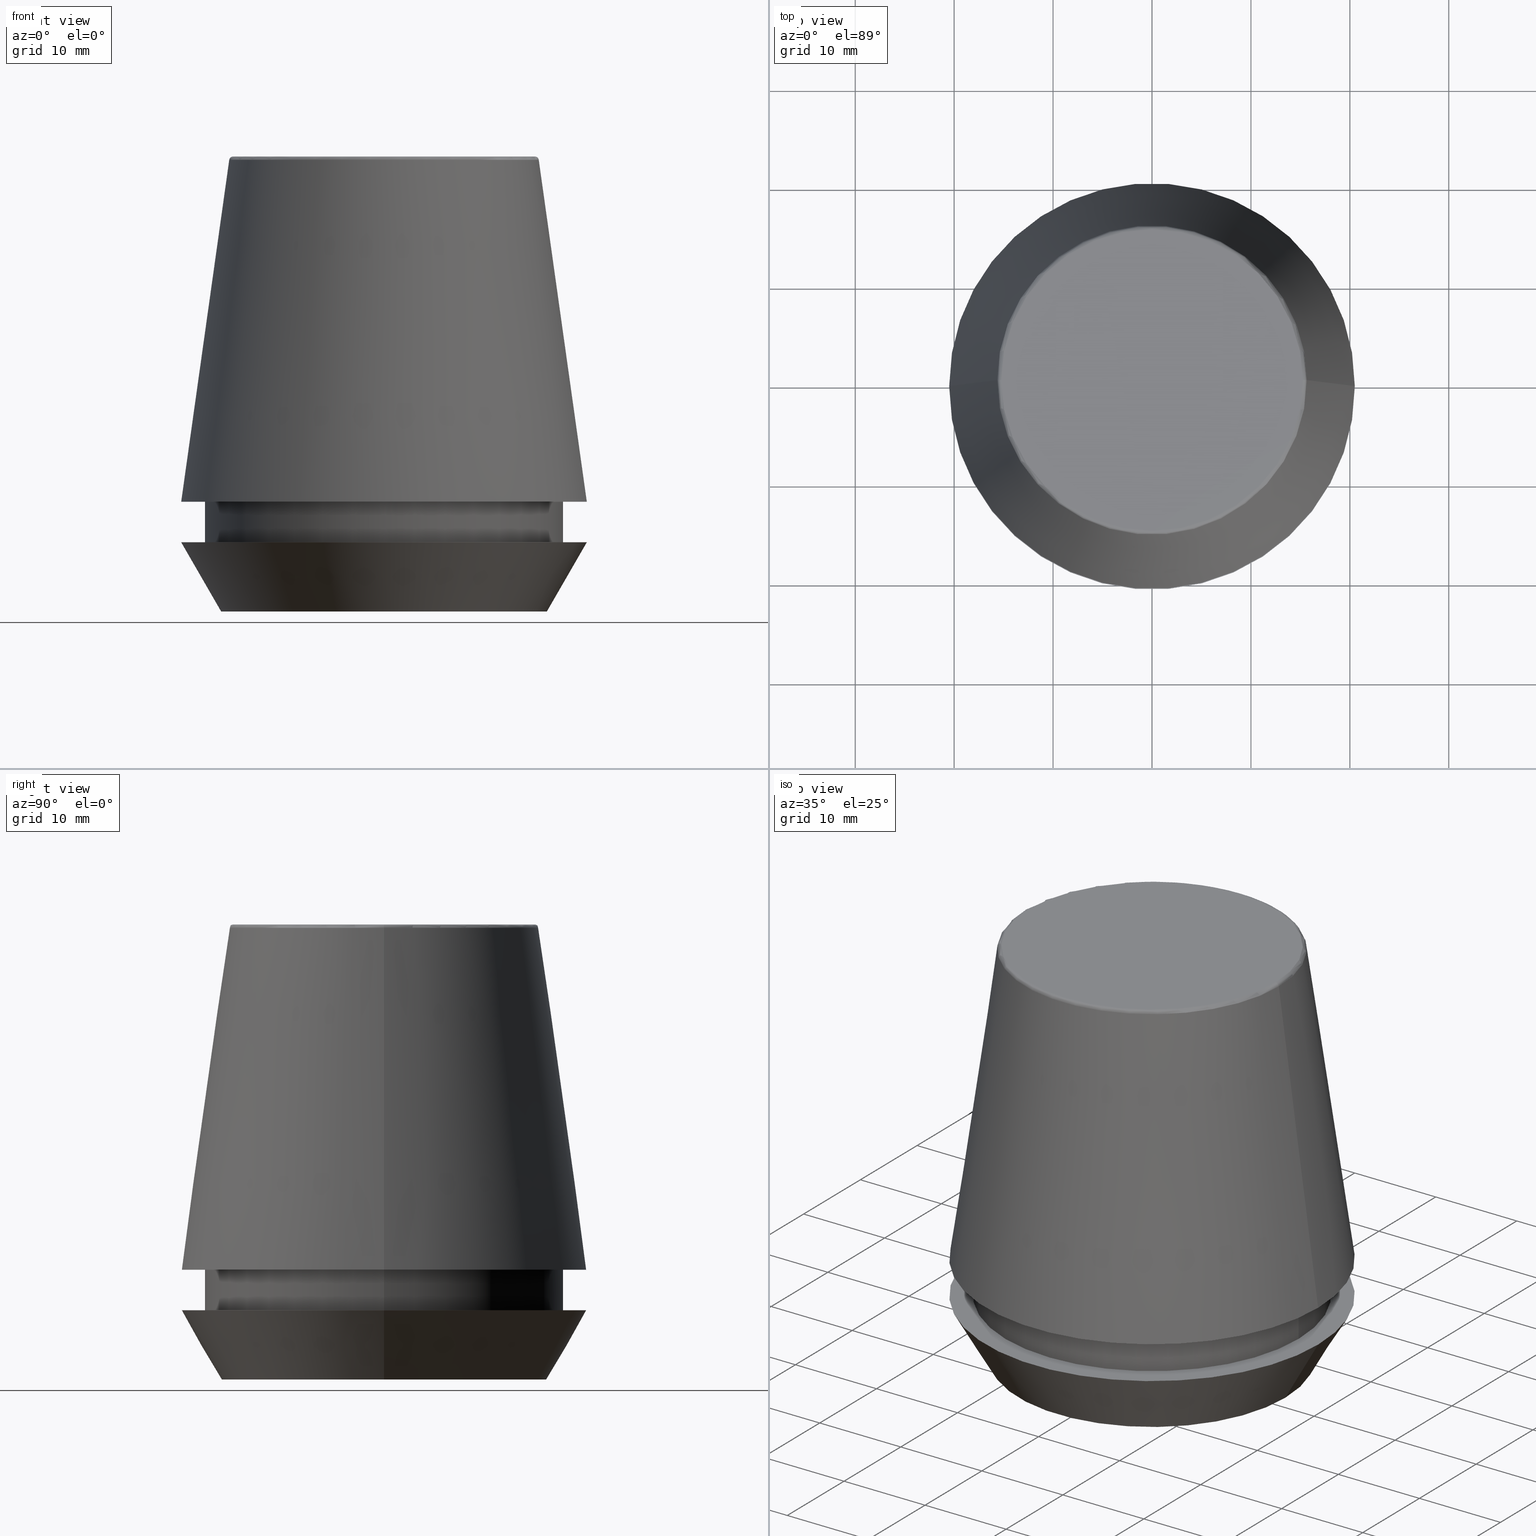
[diagram: canonical four-view strip — front | top / right | iso, engineering-drawing reading convention]
A machine part, canonical four-view strip (front | top / right | iso — engineering-drawing reading convention). The complete STEP part file that produces these views, byte-faithful:
ISO-10303-21;
HEADER;
FILE_DESCRIPTION (( 'STEP AP203' ),
    '1' );
FILE_NAME ('TAP COLLET ER 40G 6.0 X 4.9.STEP',
    '2019-04-10T03:23:41',
    ( '' ),
    ( '' ),
    'SwSTEP 2.0',
    'SolidWorks 2014',
    '' );
FILE_SCHEMA (( 'CONFIG_CONTROL_DESIGN' ));
ENDSEC;

DATA;
#1 = DIRECTION ( 'NONE',  ( -0.0000000000000000000, -0.0000000000000000000, 1.000000000000000000 ) ) ;
#2 = ORIENTED_EDGE ( 'NONE', *, *, #170, .F. ) ;
#3 = VERTEX_POINT ( 'NONE', #18 ) ;
#4 = PERSON_AND_ORGANIZATION_ROLE ( 'creator' ) ;
#5 = CARTESIAN_POINT ( 'NONE',  ( 18.10000000000000500, 0.0000000000000000000, 11.09999999999999800 ) ) ;
#6 = EDGE_CURVE ( 'NONE', #210, #196, #367, .T. ) ;
#7 = APPROVAL_ROLE ( '' ) ;
#8 = APPROVAL ( #111, 'UNSPECIFIED' ) ;
#9 = EDGE_CURVE ( 'NONE', #340, #305, #217, .T. ) ;
#10 = APPROVAL_PERSON_ORGANIZATION ( #343, #91, #303 ) ;
#11 = DESIGN_CONTEXT ( 'detailed design', #139, 'design' ) ;
#12 = CARTESIAN_POINT ( 'NONE',  ( 15.24773554530077600, 0.0000000000000000000, 46.00000000000000000 ) ) ;
#13 = DATE_AND_TIME ( #75, #61 ) ;
#14 = EDGE_CURVE ( 'NONE', #173, #196, #366, .T. ) ;
#15 = CC_DESIGN_PERSON_AND_ORGANIZATION_ASSIGNMENT ( #86, #66, ( #213 ) ) ;
#16 = ORIENTED_EDGE ( 'NONE', *, *, #297, .F. ) ;
#17 = ORIENTED_EDGE ( 'NONE', *, *, #87, .T. ) ;
#18 = CARTESIAN_POINT ( 'NONE',  ( -16.45854811567268100, 2.263058382549599700E-015, 0.0000000000000000000 ) ) ;
#19 = CARTESIAN_POINT ( 'NONE',  ( 0.0000000000000000000, 0.0000000000000000000, 11.09999999999999800 ) ) ;
#20 = AXIS2_PLACEMENT_3D ( 'NONE', #199, #130, #344 ) ;
#21 = DIRECTION ( 'NONE',  ( 1.000000000000000000, 0.0000000000000000000, 0.0000000000000000000 ) ) ;
#22 = ORIENTED_EDGE ( 'NONE', *, *, #144, .F. ) ;
#23 = CARTESIAN_POINT ( 'NONE',  ( -18.10000000000000100, 2.216610706456709600E-015, 6.999999999999999100 ) ) ;
#24 = DIRECTION ( 'NONE',  ( -0.0000000000000000000, -0.0000000000000000000, 1.000000000000000000 ) ) ;
#25 = CARTESIAN_POINT ( 'NONE',  ( 0.0000000000000000000, 0.0000000000000000000, 0.0000000000000000000 ) ) ;
#26 = CARTESIAN_POINT ( 'NONE',  ( 0.0000000000000000000, 0.0000000000000000000, 11.09999999999999800 ) ) ;
#27 = ORIENTED_EDGE ( 'NONE', *, *, #239, .F. ) ;
#28 = CARTESIAN_POINT ( 'NONE',  ( 20.50032537154048700, 2.510565784773633700E-015, 11.09999999999999800 ) ) ;
#29 = DIRECTION ( 'NONE',  ( 1.000000000000000000, 0.0000000000000000000, 0.0000000000000000000 ) ) ;
#30 = VERTEX_POINT ( 'NONE', #319 ) ;
#31 = EDGE_CURVE ( 'NONE', #246, #359, #223, .T. ) ;
#32 =( NAMED_UNIT ( * ) SI_UNIT ( $, .STERADIAN. ) SOLID_ANGLE_UNIT ( ) );
#33 = DATE_TIME_ROLE ( 'creation_date' ) ;
#34 = DIRECTION ( 'NONE',  ( 1.000000000000000000, 0.0000000000000000000, 0.0000000000000000000 ) ) ;
#35 = EDGE_LOOP ( 'NONE', ( #191, #355, #17, #322 ) ) ;
#36 = COORDINATED_UNIVERSAL_TIME_OFFSET ( 5, 30, .AHEAD. ) ;
#37 = EDGE_CURVE ( 'NONE', #340, #246, #212, .T. ) ;
#38 = ORIENTED_EDGE ( 'NONE', *, *, #145, .T. ) ;
#39 = AXIS2_PLACEMENT_3D ( 'NONE', #195, #88, #335 ) ;
#40 = COORDINATED_UNIVERSAL_TIME_OFFSET ( 5, 30, .AHEAD. ) ;
#41 = EDGE_LOOP ( 'NONE', ( #105, #122, #121, #147 ) ) ;
#42 = APPLICATION_PROTOCOL_DEFINITION ( 'international standard', 'config_control_design', 1994, #139 ) ;
#43 = MECHANICAL_CONTEXT ( 'NONE', #163, 'mechanical' ) ;
#44 = EDGE_LOOP ( 'NONE', ( #353, #38 ) ) ;
#45 = ORIENTED_EDGE ( 'NONE', *, *, #14, .F. ) ;
#46 = EDGE_CURVE ( 'NONE', #3, #70, #309, .T. ) ;
#47 = SECURITY_CLASSIFICATION ( '', '', #89 ) ;
#48 = EDGE_LOOP ( 'NONE', ( #125, #50 ) ) ;
#49 = EDGE_CURVE ( 'NONE', #281, #340, #372, .T. ) ;
#50 = ORIENTED_EDGE ( 'NONE', *, *, #142, .F. ) ;
#51 = DIRECTION ( 'NONE',  ( -0.0000000000000000000, -0.0000000000000000000, 1.000000000000000000 ) ) ;
#52 = DATE_AND_TIME ( #214, #207 ) ;
#53 = DIRECTION ( 'NONE',  ( -0.1391731009600587200, 0.0000000000000000000, -0.9902680687415712500 ) ) ;
#54 = CARTESIAN_POINT ( 'NONE',  ( -15.24773554530077600, 1.891563625393435400E-015, 46.00000000000000000 ) ) ;
#55 = EDGE_CURVE ( 'NONE', #370, #210, #361, .T. ) ;
#56 = ORIENTED_EDGE ( 'NONE', *, *, #98, .F. ) ;
#57 = DIRECTION ( 'NONE',  ( 1.000000000000000000, 0.0000000000000000000, 0.0000000000000000000 ) ) ;
#58 = CARTESIAN_POINT ( 'NONE',  ( 0.0000000000000000000, 0.0000000000000000000, 7.000000000000006200 ) ) ;
#59 = CC_DESIGN_PERSON_AND_ORGANIZATION_ASSIGNMENT ( #200, #64, ( #146 ) ) ;
#60 = LOCAL_TIME ( 8, 53, 41.00000000000000000, #36 ) ;
#61 = LOCAL_TIME ( 8, 53, 41.00000000000000000, #274 ) ;
#62 = ADVANCED_FACE ( 'NONE', ( #320 ), #306, .T. ) ;
#63 = PLANE ( 'NONE',  #132 ) ;
#64 = PERSON_AND_ORGANIZATION_ROLE ( 'design_owner' ) ;
#65 = EDGE_CURVE ( 'NONE', #30, #3, #308, .T. ) ;
#66 = PERSON_AND_ORGANIZATION_ROLE ( 'creator' ) ;
#67 = AXIS2_PLACEMENT_3D ( 'NONE', #174, #374, #137 ) ;
#68 = ORIENTED_EDGE ( 'NONE', *, *, #49, .T. ) ;
#69 = ORIENTED_EDGE ( 'NONE', *, *, #123, .F. ) ;
#70 = VERTEX_POINT ( 'NONE', #127 ) ;
#71 = CARTESIAN_POINT ( 'NONE',  ( 0.0000000000000000000, 20.50032537154048700, 11.09999999999999800 ) ) ;
#72 = AXIS2_PLACEMENT_3D ( 'NONE', #156, #126, #325 ) ;
#73 = APPROVAL_PERSON_ORGANIZATION ( #284, #280, #7 ) ;
#74 = CC_DESIGN_APPROVAL ( #91, ( #213 ) ) ;
#75 = CALENDAR_DATE ( 2019, 10, 4 ) ;
#76 = DIRECTION ( 'NONE',  ( 0.0000000000000000000, -1.000000000000000000, 0.0000000000000000000 ) ) ;
#77 = AXIS2_PLACEMENT_3D ( 'NONE', #276, #323, #352 ) ;
#78 = CARTESIAN_POINT ( 'NONE',  ( 0.0000000000000000000, 0.0000000000000000000, 11.09999999999999800 ) ) ;
#79 = DIRECTION ( 'NONE',  ( -0.0000000000000000000, -0.0000000000000000000, 1.000000000000000000 ) ) ;
#80 = CARTESIAN_POINT ( 'NONE',  ( 0.0000000000000000000, 0.0000000000000000000, 0.0000000000000000000 ) ) ;
#81 = DIRECTION ( 'NONE',  ( -1.000000000000000000, 0.0000000000000000000, -0.0000000000000000000 ) ) ;
#82 = DIRECTION ( 'NONE',  ( -0.0000000000000000000, -0.0000000000000000000, 1.000000000000000000 ) ) ;
#83 = DIRECTION ( 'NONE',  ( 1.000000000000000000, 0.0000000000000000000, 0.0000000000000000000 ) ) ;
#84 = VECTOR ( 'NONE', #99, 1000.000000000000000 ) ;
#85 = DIRECTION ( 'NONE',  ( 0.0000000000000000000, 0.0000000000000000000, -1.000000000000000000 ) ) ;
#86 = PERSON_AND_ORGANIZATION ( #338, #204 ) ;
#87 = EDGE_CURVE ( 'NONE', #281, #179, #311, .T. ) ;
#88 = DIRECTION ( 'NONE',  ( 0.0000000000000000000, 0.0000000000000000000, 1.000000000000000000 ) ) ;
#89 = SECURITY_CLASSIFICATION_LEVEL ( 'unclassified' ) ;
#90 = AXIS2_PLACEMENT_3D ( 'NONE', #287, #76, #245 ) ;
#91 = APPROVAL ( #234, 'UNSPECIFIED' ) ;
#92 = EDGE_LOOP ( 'NONE', ( #118, #69 ) ) ;
#93 = CARTESIAN_POINT ( 'NONE',  ( 0.0000000000000000000, 15.24773554530077600, 46.00000000000000000 ) ) ;
#94 = DIRECTION ( 'NONE',  ( -0.4999999999999941700, 6.123233995736694500E-017, 0.8660254037844420400 ) ) ;
#95 = ORIENTED_EDGE ( 'NONE', *, *, #170, .T. ) ;
#96 = AXIS2_PLACEMENT_3D ( 'NONE', #26, #288, #29 ) ;
#97 = ORIENTED_EDGE ( 'NONE', *, *, #37, .T. ) ;
#98 = EDGE_CURVE ( 'NONE', #359, #246, #310, .T. ) ;
#99 = DIRECTION ( 'NONE',  ( -0.0000000000000000000, -0.0000000000000000000, 1.000000000000000000 ) ) ;
#100 = PERSON_AND_ORGANIZATION ( #338, #204 ) ;
#101 = EDGE_LOOP ( 'NONE', ( #294, #337 ) ) ;
#102 = DIRECTION ( 'NONE',  ( 1.000000000000000000, 0.0000000000000000000, 0.0000000000000000000 ) ) ;
#103 = AXIS2_PLACEMENT_3D ( 'NONE', #158, #385, #34 ) ;
#104 = DIRECTION ( 'NONE',  ( -0.0000000000000000000, -0.0000000000000000000, 1.000000000000000000 ) ) ;
#105 = ORIENTED_EDGE ( 'NONE', *, *, #345, .T. ) ;
#106 = DIRECTION ( 'NONE',  ( 0.4999999999999941700, 0.0000000000000000000, 0.8660254037844420400 ) ) ;
#107 = CC_DESIGN_APPROVAL ( #8, ( #307 ) ) ;
#108 = ADVANCED_FACE ( 'NONE', ( #302 ), #315, .T. ) ;
#109 = DIRECTION ( 'NONE',  ( 1.000000000000000000, 0.0000000000000000000, 0.0000000000000000000 ) ) ;
#110 = CALENDAR_DATE ( 2019, 10, 4 ) ;
#111 = APPROVAL_STATUS ( 'not_yet_approved' ) ;
#112 = ORIENTED_EDGE ( 'NONE', *, *, #87, .F. ) ;
#113 = PERSON_AND_ORGANIZATION ( #338, #204 ) ;
#114 = CC_DESIGN_PERSON_AND_ORGANIZATION_ASSIGNMENT ( #176, #269, ( #213 ) ) ;
#115 = EDGE_LOOP ( 'NONE', ( #45, #153, #143, #131 ) ) ;
#116 = ORIENTED_EDGE ( 'NONE', *, *, #37, .F. ) ;
#117 = CLOSED_SHELL ( 'NONE', ( #108, #62, #166, #227, #257, #365, #334, #264, #362, #136, #331, #232 ) ) ;
#118 = ORIENTED_EDGE ( 'NONE', *, *, #345, .F. ) ;
#119 = AXIS2_PLACEMENT_3D ( 'NONE', #157, #381, #189 ) ;
#120 = EDGE_LOOP ( 'NONE', ( #271, #321, #16, #27 ) ) ;
#121 = ORIENTED_EDGE ( 'NONE', *, *, #6, .F. ) ;
#122 = ORIENTED_EDGE ( 'NONE', *, *, #14, .T. ) ;
#123 = EDGE_CURVE ( 'NONE', #173, #370, #312, .T. ) ;
#124 = DIRECTION ( 'NONE',  ( 1.000000000000000000, 0.0000000000000000000, 0.0000000000000000000 ) ) ;
#125 = ORIENTED_EDGE ( 'NONE', *, *, #65, .F. ) ;
#126 = DIRECTION ( 'NONE',  ( -0.0000000000000000000, -0.0000000000000000000, 1.000000000000000000 ) ) ;
#127 = CARTESIAN_POINT ( 'NONE',  ( -20.50000000000000000, 2.510525938252074100E-015, 7.000000000000006200 ) ) ;
#128 = AXIS2_PLACEMENT_3D ( 'NONE', #93, #253, #81 ) ;
#129 = DIRECTION ( 'NONE',  ( 0.0000000000000000000, 0.0000000000000000000, -1.000000000000000000 ) ) ;
#130 = DIRECTION ( 'NONE',  ( -0.0000000000000000000, -0.0000000000000000000, 1.000000000000000000 ) ) ;
#131 = ORIENTED_EDGE ( 'NONE', *, *, #145, .F. ) ;
#132 = AXIS2_PLACEMENT_3D ( 'NONE', #71, #230, #167 ) ;
#133 = VECTOR ( 'NONE', #350, 1000.000000000000000 ) ;
#134 = CARTESIAN_POINT ( 'NONE',  ( -20.50032537154048700, 0.0000000000000000000, 11.09999999999999800 ) ) ;
#135 = PLANE ( 'NONE',  #304 ) ;
#136 = ADVANCED_FACE ( 'NONE', ( #301 ), #290, .T. ) ;
#137 = DIRECTION ( 'NONE',  ( -1.000000000000000000, 0.0000000000000000000, -0.0000000000000000000 ) ) ;
#138 =( LENGTH_UNIT ( ) NAMED_UNIT ( * ) SI_UNIT ( .MILLI., .METRE. ) );
#139 = APPLICATION_CONTEXT ( 'configuration controlled 3d designs of mechanical parts and assemblies' ) ;
#140 = LOCAL_TIME ( 8, 53, 41.00000000000000000, #40 ) ;
#141 = CARTESIAN_POINT ( 'NONE',  ( -18.10000000000000500, 2.216610706456710000E-015, 11.09999999999999800 ) ) ;
#142 = EDGE_CURVE ( 'NONE', #3, #30, #289, .T. ) ;
#143 = ORIENTED_EDGE ( 'NONE', *, *, #55, .T. ) ;
#144 = EDGE_CURVE ( 'NONE', #340, #281, #283, .T. ) ;
#145 = EDGE_CURVE ( 'NONE', #196, #210, #286, .T. ) ;
#146 = PRODUCT ( 'TAP COLLET ER 40G 6.0 X 4.9', 'TAP COLLET ER 40G 6.0 X 4.9', '', ( #43 ) ) ;
#147 = ORIENTED_EDGE ( 'NONE', *, *, #55, .F. ) ;
#148 = DATE_AND_TIME ( #110, #386 ) ;
#149 = DIRECTION ( 'NONE',  ( -1.000000000000000000, 0.0000000000000000000, 0.0000000000000000000 ) ) ;
#150 = EDGE_CURVE ( 'NONE', #305, #179, #277, .T. ) ;
#151 = CARTESIAN_POINT ( 'NONE',  ( 0.0000000000000000000, 0.0000000000000000000, 45.65566924038402900 ) ) ;
#152 = CC_DESIGN_PERSON_AND_ORGANIZATION_ASSIGNMENT ( #113, #368, ( #47 ) ) ;
#153 = ORIENTED_EDGE ( 'NONE', *, *, #123, .T. ) ;
#154 = DIRECTION ( 'NONE',  ( -0.0000000000000000000, -0.0000000000000000000, 1.000000000000000000 ) ) ;
#155 = AXIS2_PLACEMENT_3D ( 'NONE', #160, #387, #192 ) ;
#156 = CARTESIAN_POINT ( 'NONE',  ( 0.0000000000000000000, 0.0000000000000000000, 45.65566924038402900 ) ) ;
#157 = CARTESIAN_POINT ( 'NONE',  ( 0.0000000000000000000, 0.0000000000000000000, 6.999999999999999100 ) ) ;
#158 = CARTESIAN_POINT ( 'NONE',  ( 0.0000000000000000000, 0.0000000000000000000, 11.09999999999999800 ) ) ;
#159 = AXIS2_PLACEMENT_3D ( 'NONE', #19, #154, #124 ) ;
#160 = CARTESIAN_POINT ( 'NONE',  ( -15.24773554530077600, 1.867309052979791600E-015, 45.60000000000000100 ) ) ;
#161 = DIRECTION ( 'NONE',  ( 1.000000000000000000, 0.0000000000000000000, 0.0000000000000000000 ) ) ;
#162 = CC_DESIGN_PERSON_AND_ORGANIZATION_ASSIGNMENT ( #100, #4, ( #307 ) ) ;
#163 = APPLICATION_CONTEXT ( 'configuration controlled 3d designs of mechanical parts and assemblies' ) ;
#164 = MANIFOLD_SOLID_BREP ( 'Revolve1', #117 ) ;
#165 = AXIS2_PLACEMENT_3D ( 'NONE', #220, #85, #183 ) ;
#166 = ADVANCED_FACE ( 'NONE', ( #296 ), #270, .T. ) ;
#167 = DIRECTION ( 'NONE',  ( 1.000000000000000000, 0.0000000000000000000, 0.0000000000000000000 ) ) ;
#168 = APPROVAL_ROLE ( '' ) ;
#169 = ORIENTED_EDGE ( 'NONE', *, *, #239, .T. ) ;
#170 = EDGE_CURVE ( 'NONE', #70, #175, #268, .T. ) ;
#171 = APPROVAL_STATUS ( 'not_yet_approved' ) ;
#172 = AXIS2_PLACEMENT_3D ( 'NONE', #263, #299, #211 ) ;
#173 = VERTEX_POINT ( 'NONE', #23 ) ;
#174 = CARTESIAN_POINT ( 'NONE',  ( 0.0000000000000000000, 20.50000000000000000, 7.000000000000002700 ) ) ;
#175 = VERTEX_POINT ( 'NONE', #252 ) ;
#176 = PERSON_AND_ORGANIZATION ( #338, #204 ) ;
#177 = CARTESIAN_POINT ( 'NONE',  ( 0.0000000000000000000, 0.0000000000000000000, 46.00000000000000000 ) ) ;
#178 = CARTESIAN_POINT ( 'NONE',  ( 0.0000000000000000000, 0.0000000000000000000, 46.00000000000000000 ) ) ;
#179 = VERTEX_POINT ( 'NONE', #134 ) ;
#180 = CARTESIAN_POINT ( 'NONE',  ( -18.10000000000000500, 2.216610706456710000E-015, 46.00000000000000000 ) ) ;
#181 = CC_DESIGN_DATE_AND_TIME_ASSIGNMENT ( #371, #33, ( #307 ) ) ;
#182 = EDGE_CURVE ( 'NONE', #281, #359, #272, .T. ) ;
#183 = DIRECTION ( 'NONE',  ( -1.000000000000000000, 0.0000000000000000000, 0.0000000000000000000 ) ) ;
#184 = ORIENTED_EDGE ( 'NONE', *, *, #31, .T. ) ;
#185 = CONICAL_SURFACE ( 'NONE', #375, 16.45854811567268100, 0.5235987755982921500 ) ;
#186 = CONICAL_SURFACE ( 'NONE', #209, 16.45854811567268100, 0.5235987755982921500 ) ;
#187 = DIRECTION ( 'NONE',  ( -0.0000000000000000000, -0.0000000000000000000, 1.000000000000000000 ) ) ;
#188 = CC_DESIGN_SECURITY_CLASSIFICATION ( #47, ( #213 ) ) ;
#189 = DIRECTION ( 'NONE',  ( 1.000000000000000000, 0.0000000000000000000, 0.0000000000000000000 ) ) ;
#190 = CARTESIAN_POINT ( 'NONE',  ( 0.0000000000000000000, 0.0000000000000000000, 11.09999999999999800 ) ) ;
#191 = ORIENTED_EDGE ( 'NONE', *, *, #9, .F. ) ;
#192 = DIRECTION ( 'NONE',  ( -1.000000000000000000, 1.224646799147353900E-016, 0.0000000000000000000 ) ) ;
#193 = APPROVAL_PERSON_ORGANIZATION ( #197, #8, #168 ) ;
#194 = CARTESIAN_POINT ( 'NONE',  ( 15.64384277279740400, 2.213191991290356800E-015, 45.65566924038402900 ) ) ;
#195 = CARTESIAN_POINT ( 'NONE',  ( 0.0000000000000000000, 0.0000000000000000000, 0.0000000000000000000 ) ) ;
#196 = VERTEX_POINT ( 'NONE', #141 ) ;
#197 = PERSON_AND_ORGANIZATION ( #338, #204 ) ;
#198 = AXIS2_PLACEMENT_3D ( 'NONE', #295, #104, #330 ) ;
#199 = CARTESIAN_POINT ( 'NONE',  ( 0.0000000000000000000, 0.0000000000000000000, 46.00000000000000000 ) ) ;
#200 = PERSON_AND_ORGANIZATION ( #338, #204 ) ;
#201 = DATE_TIME_ROLE ( 'classification_date' ) ;
#202 = ORIENTED_EDGE ( 'NONE', *, *, #31, .F. ) ;
#203 = AXIS2_PLACEMENT_3D ( 'NONE', #151, #82, #329 ) ;
#204 = ORGANIZATION ( 'UNSPECIFIED', 'UNSPECIFIED', '' ) ;
#205 = AXIS2_PLACEMENT_3D ( 'NONE', #178, #291, #102 ) ;
#206 = ORIENTED_EDGE ( 'NONE', *, *, #9, .T. ) ;
#207 = LOCAL_TIME ( 8, 53, 41.00000000000000000, #215 ) ;
#208 = CARTESIAN_POINT ( 'NONE',  ( 0.0000000000000000000, 0.0000000000000000000, 45.60000000000000100 ) ) ;
#209 = AXIS2_PLACEMENT_3D ( 'NONE', #25, #358, #313 ) ;
#210 = VERTEX_POINT ( 'NONE', #5 ) ;
#211 = DIRECTION ( 'NONE',  ( 1.000000000000000000, 0.0000000000000000000, 0.0000000000000000000 ) ) ;
#212 = CIRCLE ( 'NONE', #90, 0.3999999999999975800 ) ;
#213 = PRODUCT_DEFINITION_FORMATION_WITH_SPECIFIED_SOURCE ( 'ANY', '', #146, .NOT_KNOWN. ) ;
#214 = CALENDAR_DATE ( 2019, 10, 4 ) ;
#215 = COORDINATED_UNIVERSAL_TIME_OFFSET ( 5, 30, .AHEAD. ) ;
#216 = CARTESIAN_POINT ( 'NONE',  ( -16.45854811567268100, 2.015590826847124800E-015, 0.0000000000000000000 ) ) ;
#217 = LINE ( 'NONE', #351, #133 ) ;
#218 = APPROVAL_DATE_TIME ( #52, #8 ) ;
#219 = AXIS2_PLACEMENT_3D ( 'NONE', #58, #259, #83 ) ;
#220 = CARTESIAN_POINT ( 'NONE',  ( 0.0000000000000000000, 0.0000000000000000000, 11.09999999999999800 ) ) ;
#221 = CARTESIAN_POINT ( 'NONE',  ( 0.0000000000000000000, 0.0000000000000000000, 45.60000000000000100 ) ) ;
#222 = DIRECTION ( 'NONE',  ( 1.000000000000000000, 0.0000000000000000000, 0.0000000000000000000 ) ) ;
#223 = CIRCLE ( 'NONE', #77, 15.24773554530077600 ) ;
#224 = AXIS2_PLACEMENT_3D ( 'NONE', #251, #79, #292 ) ;
#225 = PLANE ( 'NONE',  #128 ) ;
#226 = CARTESIAN_POINT ( 'NONE',  ( -15.64384277279740400, 0.0000000000000000000, 45.65566924038402900 ) ) ;
#227 = ADVANCED_FACE ( 'NONE', ( #285 ), #186, .T. ) ;
#228 = ORIENTED_EDGE ( 'NONE', *, *, #150, .T. ) ;
#229 = AXIS2_PLACEMENT_3D ( 'NONE', #221, #187, #327 ) ;
#230 = DIRECTION ( 'NONE',  ( 0.0000000000000000000, -0.0000000000000000000, 1.000000000000000000 ) ) ;
#231 = FACE_OUTER_BOUND ( 'NONE', #101, .T. ) ;
#232 = ADVANCED_FACE ( 'NONE', ( #266 ), #225, .F. ) ;
#233 = COORDINATED_UNIVERSAL_TIME_OFFSET ( 5, 30, .AHEAD. ) ;
#234 = APPROVAL_STATUS ( 'not_yet_approved' ) ;
#235 = FACE_OUTER_BOUND ( 'NONE', #255, .T. ) ;
#236 = SHAPE_DEFINITION_REPRESENTATION ( #346, #354 ) ;
#237 = CIRCLE ( 'NONE', #219, 20.50000000000000000 ) ;
#238 = APPLICATION_PROTOCOL_DEFINITION ( 'international standard', 'config_control_design', 1994, #163 ) ;
#239 = EDGE_CURVE ( 'NONE', #30, #175, #250, .T. ) ;
#240 = ORIENTED_EDGE ( 'NONE', *, *, #182, .T. ) ;
#241 = CYLINDRICAL_SURFACE ( 'NONE', #318, 18.10000000000000500 ) ;
#242 = AXIS2_PLACEMENT_3D ( 'NONE', #190, #24, #222 ) ;
#243 = FACE_BOUND ( 'NONE', #44, .T. ) ;
#244 = CIRCLE ( 'NONE', #172, 18.10000000000000100 ) ;
#245 = DIRECTION ( 'NONE',  ( 0.0000000000000000000, 0.0000000000000000000, -1.000000000000000000 ) ) ;
#246 = VERTEX_POINT ( 'NONE', #12 ) ;
#247 = FACE_BOUND ( 'NONE', #92, .T. ) ;
#248 = PRODUCT_RELATED_PRODUCT_CATEGORY ( 'detail', '', ( #146 ) ) ;
#249 = CIRCLE ( 'NONE', #96, 20.50032537154048700 ) ;
#250 = LINE ( 'NONE', #279, #262 ) ;
#251 = CARTESIAN_POINT ( 'NONE',  ( 0.0000000000000000000, 0.0000000000000000000, 0.0000000000000000000 ) ) ;
#252 = CARTESIAN_POINT ( 'NONE',  ( 20.50000000000000000, 0.0000000000000000000, 7.000000000000006200 ) ) ;
#253 = DIRECTION ( 'NONE',  ( 0.0000000000000000000, 0.0000000000000000000, -1.000000000000000000 ) ) ;
#254 = DIRECTION ( 'NONE',  ( -0.0000000000000000000, -0.0000000000000000000, 1.000000000000000000 ) ) ;
#255 = EDGE_LOOP ( 'NONE', ( #300, #256, #169, #2 ) ) ;
#256 = ORIENTED_EDGE ( 'NONE', *, *, #142, .T. ) ;
#257 = ADVANCED_FACE ( 'NONE', ( #273 ), #135, .F. ) ;
#258 = APPROVAL_DATE_TIME ( #261, #280 ) ;
#259 = DIRECTION ( 'NONE',  ( -0.0000000000000000000, -0.0000000000000000000, 1.000000000000000000 ) ) ;
#260 = FACE_OUTER_BOUND ( 'NONE', #115, .T. ) ;
#261 = DATE_AND_TIME ( #332, #140 ) ;
#262 = VECTOR ( 'NONE', #106, 1000.000000000000000 ) ;
#263 = CARTESIAN_POINT ( 'NONE',  ( 0.0000000000000000000, 0.0000000000000000000, 6.999999999999999100 ) ) ;
#264 = ADVANCED_FACE ( 'NONE', ( #260 ), #241, .T. ) ;
#265 = ORIENTED_EDGE ( 'NONE', *, *, #98, .T. ) ;
#266 = FACE_OUTER_BOUND ( 'NONE', #378, .T. ) ;
#267 = FACE_OUTER_BOUND ( 'NONE', #328, .T. ) ;
#268 = CIRCLE ( 'NONE', #198, 20.50000000000000000 ) ;
#269 = PERSON_AND_ORGANIZATION_ROLE ( 'design_supplier' ) ;
#270 = CYLINDRICAL_SURFACE ( 'NONE', #20, 18.10000000000000500 ) ;
#271 = ORIENTED_EDGE ( 'NONE', *, *, #65, .T. ) ;
#272 = CIRCLE ( 'NONE', #155, 0.3999999999999975800 ) ;
#273 = FACE_OUTER_BOUND ( 'NONE', #48, .T. ) ;
#274 = COORDINATED_UNIVERSAL_TIME_OFFSET ( 5, 30, .AHEAD. ) ;
#275 = AXIS2_PLACEMENT_3D ( 'NONE', #78, #129, #149 ) ;
#276 = CARTESIAN_POINT ( 'NONE',  ( 0.0000000000000000000, 0.0000000000000000000, 46.00000000000000000 ) ) ;
#277 = CIRCLE ( 'NONE', #242, 20.50032537154048700 ) ;
#278 = FACE_OUTER_BOUND ( 'NONE', #342, .T. ) ;
#279 = CARTESIAN_POINT ( 'NONE',  ( 16.45854811567268100, 0.0000000000000000000, 0.0000000000000000000 ) ) ;
#280 = APPROVAL ( #171, 'UNSPECIFIED' ) ;
#281 = VERTEX_POINT ( 'NONE', #226 ) ;
#282 = APPROVAL_DATE_TIME ( #13, #91 ) ;
#283 = CIRCLE ( 'NONE', #203, 15.64384277279740400 ) ;
#284 = PERSON_AND_ORGANIZATION ( #338, #204 ) ;
#285 = FACE_OUTER_BOUND ( 'NONE', #120, .T. ) ;
#286 = CIRCLE ( 'NONE', #103, 18.10000000000000500 ) ;
#287 = CARTESIAN_POINT ( 'NONE',  ( 15.24773554530077600, 0.0000000000000000000, 45.60000000000000100 ) ) ;
#288 = DIRECTION ( 'NONE',  ( -0.0000000000000000000, -0.0000000000000000000, 1.000000000000000000 ) ) ;
#289 = CIRCLE ( 'NONE', #224, 16.45854811567268100 ) ;
#290 = CONICAL_SURFACE ( 'NONE', #275, 20.50032537154048700, 0.1396263401595396200 ) ;
#291 = DIRECTION ( 'NONE',  ( -0.0000000000000000000, -0.0000000000000000000, 1.000000000000000000 ) ) ;
#292 = DIRECTION ( 'NONE',  ( 1.000000000000000000, 0.0000000000000000000, 0.0000000000000000000 ) ) ;
#293 = DIRECTION ( 'NONE',  ( -0.0000000000000000000, -0.0000000000000000000, 1.000000000000000000 ) ) ;
#294 = ORIENTED_EDGE ( 'NONE', *, *, #336, .F. ) ;
#295 = CARTESIAN_POINT ( 'NONE',  ( 0.0000000000000000000, 0.0000000000000000000, 7.000000000000006200 ) ) ;
#296 = FACE_OUTER_BOUND ( 'NONE', #41, .T. ) ;
#297 = EDGE_CURVE ( 'NONE', #175, #70, #237, .T. ) ;
#298 = CARTESIAN_POINT ( 'NONE',  ( 0.0000000000000000000, 0.0000000000000000000, 0.0000000000000000000 ) ) ;
#299 = DIRECTION ( 'NONE',  ( -0.0000000000000000000, -0.0000000000000000000, 1.000000000000000000 ) ) ;
#300 = ORIENTED_EDGE ( 'NONE', *, *, #46, .F. ) ;
#301 = FACE_OUTER_BOUND ( 'NONE', #35, .T. ) ;
#302 = FACE_OUTER_BOUND ( 'NONE', #314, .T. ) ;
#303 = APPROVAL_ROLE ( '' ) ;
#304 = AXIS2_PLACEMENT_3D ( 'NONE', #298, #360, #161 ) ;
#305 = VERTEX_POINT ( 'NONE', #28 ) ;
#306 = CONICAL_SURFACE ( 'NONE', #165, 20.50032537154048700, 0.1396263401595396200 ) ;
#307 = PRODUCT_DEFINITION ( 'UNKNOWN', '', #213, #11 ) ;
#308 = CIRCLE ( 'NONE', #356, 16.45854811567268100 ) ;
#309 = LINE ( 'NONE', #216, #341 ) ;
#310 = CIRCLE ( 'NONE', #205, 15.24773554530077600 ) ;
#311 = LINE ( 'NONE', #380, #324 ) ;
#312 = CIRCLE ( 'NONE', #119, 18.10000000000000100 ) ;
#313 = DIRECTION ( 'NONE',  ( 1.000000000000000000, 0.0000000000000000000, 0.0000000000000000000 ) ) ;
#314 = EDGE_LOOP ( 'NONE', ( #377, #240, #202, #116 ) ) ;
#315 = TOROIDAL_SURFACE ( 'NONE', #229, 15.24773554530077600, 0.3999999999999991900 ) ;
#316 = VECTOR ( 'NONE', #51, 1000.000000000000000 ) ;
#317 = CARTESIAN_POINT ( 'NONE',  ( 0.0000000000000000000, 0.0000000000000000000, 0.0000000000000000000 ) ) ;
#318 = AXIS2_PLACEMENT_3D ( 'NONE', #177, #254, #57 ) ;
#319 = CARTESIAN_POINT ( 'NONE',  ( 16.45854811567268100, 0.0000000000000000000, 0.0000000000000000000 ) ) ;
#320 = FACE_OUTER_BOUND ( 'NONE', #383, .T. ) ;
#321 = ORIENTED_EDGE ( 'NONE', *, *, #46, .T. ) ;
#322 = ORIENTED_EDGE ( 'NONE', *, *, #336, .T. ) ;
#323 = DIRECTION ( 'NONE',  ( -0.0000000000000000000, -0.0000000000000000000, 1.000000000000000000 ) ) ;
#324 = VECTOR ( 'NONE', #53, 1000.000000000000000 ) ;
#325 = DIRECTION ( 'NONE',  ( 1.000000000000000000, 0.0000000000000000000, 0.0000000000000000000 ) ) ;
#326 = PLANE ( 'NONE',  #67 ) ;
#327 = DIRECTION ( 'NONE',  ( 1.000000000000000000, 0.0000000000000000000, 0.0000000000000000000 ) ) ;
#328 = EDGE_LOOP ( 'NONE', ( #348, #95 ) ) ;
#329 = DIRECTION ( 'NONE',  ( 1.000000000000000000, 0.0000000000000000000, 0.0000000000000000000 ) ) ;
#330 = DIRECTION ( 'NONE',  ( 1.000000000000000000, 0.0000000000000000000, 0.0000000000000000000 ) ) ;
#331 = ADVANCED_FACE ( 'NONE', ( #278 ), #349, .T. ) ;
#332 = CALENDAR_DATE ( 2019, 10, 4 ) ;
#333 =( NAMED_UNIT ( * ) PLANE_ANGLE_UNIT ( ) SI_UNIT ( $, .RADIAN. ) );
#334 = ADVANCED_FACE ( 'NONE', ( #247, #267 ), #326, .F. ) ;
#335 = DIRECTION ( 'NONE',  ( 1.000000000000000000, 0.0000000000000000000, 0.0000000000000000000 ) ) ;
#336 = EDGE_CURVE ( 'NONE', #179, #305, #249, .T. ) ;
#337 = ORIENTED_EDGE ( 'NONE', *, *, #150, .F. ) ;
#338 = PERSON ( 'UNSPECIFIED', 'UNSPECIFIED', 'UNSPECIFIED', ('UNSPECIFIED'), ('UNSPECIFIED'), ('UNSPECIFIED') ) ;
#339 = DIRECTION ( 'NONE',  ( -0.0000000000000000000, -0.0000000000000000000, 1.000000000000000000 ) ) ;
#340 = VERTEX_POINT ( 'NONE', #194 ) ;
#341 = VECTOR ( 'NONE', #94, 1000.000000000000000 ) ;
#342 = EDGE_LOOP ( 'NONE', ( #376, #68, #97, #56 ) ) ;
#343 = PERSON_AND_ORGANIZATION ( #338, #204 ) ;
#344 = DIRECTION ( 'NONE',  ( 1.000000000000000000, 0.0000000000000000000, 0.0000000000000000000 ) ) ;
#345 = EDGE_CURVE ( 'NONE', #370, #173, #244, .T. ) ;
#346 = PRODUCT_DEFINITION_SHAPE ( 'NONE', 'NONE',  #307 ) ;
#347 = UNCERTAINTY_MEASURE_WITH_UNIT (LENGTH_MEASURE( 1.000000000000000100E-005 ), #138, 'distance_accuracy_value', 'NONE');
#348 = ORIENTED_EDGE ( 'NONE', *, *, #297, .T. ) ;
#349 = TOROIDAL_SURFACE ( 'NONE', #384, 15.24773554530077600, 0.3999999999999991900 ) ;
#350 = DIRECTION ( 'NONE',  ( 0.1391731009600587200, 1.704378926181473400E-017, -0.9902680687415712500 ) ) ;
#351 = CARTESIAN_POINT ( 'NONE',  ( 20.50032537154048700, 2.510565784773633700E-015, 11.09999999999999800 ) ) ;
#352 = DIRECTION ( 'NONE',  ( 1.000000000000000000, 0.0000000000000000000, 0.0000000000000000000 ) ) ;
#353 = ORIENTED_EDGE ( 'NONE', *, *, #6, .T. ) ;
#354 = ADVANCED_BREP_SHAPE_REPRESENTATION ( 'TAP COLLET ER 40G 6.0 X 4.9', ( #164, #39 ), #357 ) ;
#355 = ORIENTED_EDGE ( 'NONE', *, *, #49, .F. ) ;
#356 = AXIS2_PLACEMENT_3D ( 'NONE', #317, #339, #21 ) ;
#357 =( GEOMETRIC_REPRESENTATION_CONTEXT ( 3 ) GLOBAL_UNCERTAINTY_ASSIGNED_CONTEXT ( ( #347 ) ) GLOBAL_UNIT_ASSIGNED_CONTEXT ( ( #138, #333, #32 ) ) REPRESENTATION_CONTEXT ( 'NONE', 'WORKASPACE' ) );
#358 = DIRECTION ( 'NONE',  ( -0.0000000000000000000, -0.0000000000000000000, 1.000000000000000000 ) ) ;
#359 = VERTEX_POINT ( 'NONE', #54 ) ;
#360 = DIRECTION ( 'NONE',  ( 0.0000000000000000000, -0.0000000000000000000, 1.000000000000000000 ) ) ;
#361 = LINE ( 'NONE', #379, #316 ) ;
#362 = ADVANCED_FACE ( 'NONE', ( #231, #243 ), #63, .F. ) ;
#363 = DIRECTION ( 'NONE',  ( 1.000000000000000000, 0.0000000000000000000, 0.0000000000000000000 ) ) ;
#364 = CARTESIAN_POINT ( 'NONE',  ( 18.10000000000000100, 0.0000000000000000000, 6.999999999999999100 ) ) ;
#365 = ADVANCED_FACE ( 'NONE', ( #235 ), #185, .T. ) ;
#366 = LINE ( 'NONE', #180, #84 ) ;
#367 = CIRCLE ( 'NONE', #159, 18.10000000000000500 ) ;
#368 = PERSON_AND_ORGANIZATION_ROLE ( 'classification_officer' ) ;
#369 = CC_DESIGN_APPROVAL ( #280, ( #47 ) ) ;
#370 = VERTEX_POINT ( 'NONE', #364 ) ;
#371 = DATE_AND_TIME ( #373, #60 ) ;
#372 = CIRCLE ( 'NONE', #72, 15.64384277279740400 ) ;
#373 = CALENDAR_DATE ( 2019, 10, 4 ) ;
#374 = DIRECTION ( 'NONE',  ( 0.0000000000000000000, 0.0000000000000000000, -1.000000000000000000 ) ) ;
#375 = AXIS2_PLACEMENT_3D ( 'NONE', #80, #293, #363 ) ;
#376 = ORIENTED_EDGE ( 'NONE', *, *, #182, .F. ) ;
#377 = ORIENTED_EDGE ( 'NONE', *, *, #144, .T. ) ;
#378 = EDGE_LOOP ( 'NONE', ( #184, #265 ) ) ;
#379 = CARTESIAN_POINT ( 'NONE',  ( 18.10000000000000500, 0.0000000000000000000, 46.00000000000000000 ) ) ;
#380 = CARTESIAN_POINT ( 'NONE',  ( -20.50032537154048700, 0.0000000000000000000, 11.09999999999999800 ) ) ;
#381 = DIRECTION ( 'NONE',  ( -0.0000000000000000000, -0.0000000000000000000, 1.000000000000000000 ) ) ;
#382 = CC_DESIGN_DATE_AND_TIME_ASSIGNMENT ( #148, #201, ( #47 ) ) ;
#383 = EDGE_LOOP ( 'NONE', ( #22, #206, #228, #112 ) ) ;
#384 = AXIS2_PLACEMENT_3D ( 'NONE', #208, #1, #109 ) ;
#385 = DIRECTION ( 'NONE',  ( -0.0000000000000000000, -0.0000000000000000000, 1.000000000000000000 ) ) ;
#386 = LOCAL_TIME ( 8, 53, 41.00000000000000000, #233 ) ;
#387 = DIRECTION ( 'NONE',  ( 1.224646799147353200E-016, 1.000000000000000000, 0.0000000000000000000 ) ) ;
ENDSEC;
END-ISO-10303-21;
